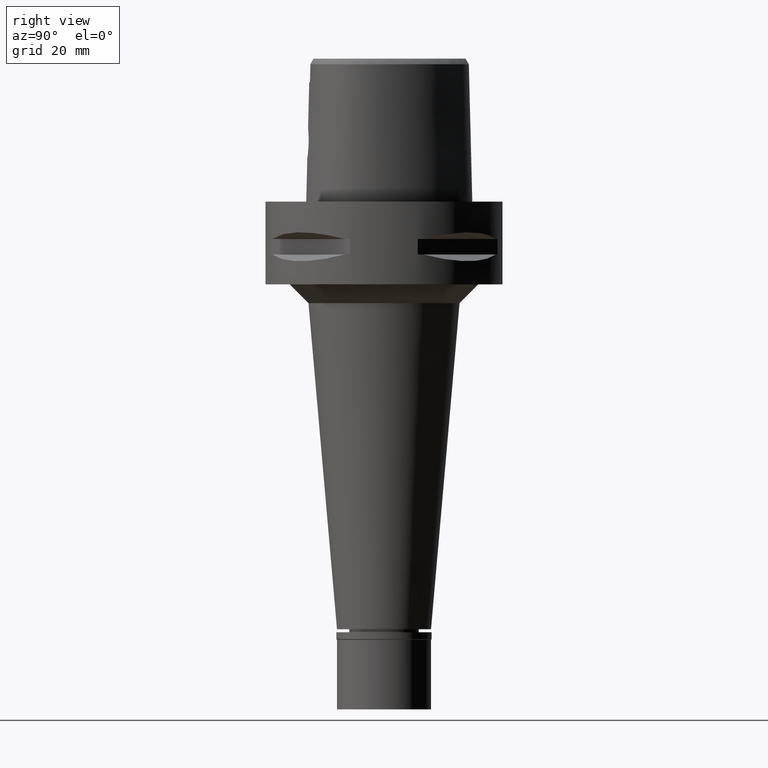
[diagram: clean part render]
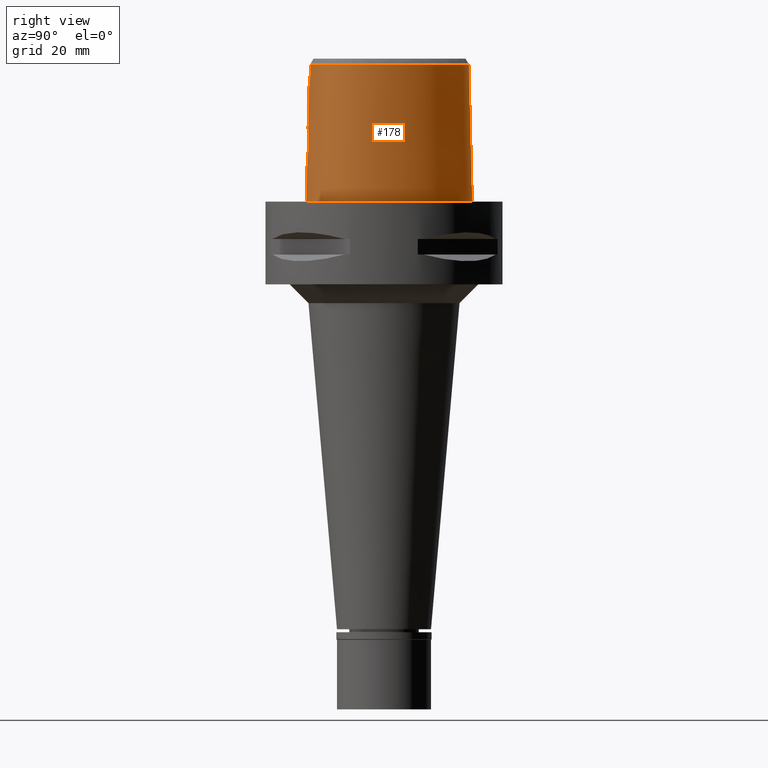
[diagram: same view with one face highlighted and labeled with its STEP entity id]
A machine part, right view. The second image highlights one B-rep face of the part: STEP entity #178.
In plain terms, the highlighted face is a freeform B-spline surface patch.
Its self-contained STEP definition (entity closure, byte-faithful):
#35 = B_SPLINE_SURFACE_WITH_KNOTS ( 'NONE', 3, 3, ( 
 ( #4670, #3059, #4240, #2291 ),
 ( #740, #1642, #3849, #342 ),
 ( #1903, #1524, #4644, #1147 ),
 ( #4505, #3662, #1316, #2147 ),
 ( #3684, #961, #2512, #1716 ),
 ( #3734, #3335, #932, #594 ),
 ( #3708, #179, #208, #155 ),
 ( #4455, #4840, #2123, #2487 ),
 ( #128, #3258, #1415, #235 ),
 ( #4898, #2074, #4042, #1338 ),
 ( #1797, #1391, #2947, #2896 ),
 ( #543, #4095, #3361, #1692 ),
 ( #4868, #1769, #1010, #4071 ),
 ( #3280, #2097, #1739, #4921 ),
 ( #570, #4532, #2563, #3309 ),
 ( #2972, #1364, #2922, #4120 ),
 ( #619, #2174, #4480, #988 ),
 ( #2539, #2462, #4816, #4013 ),
 ( #517, #3637, #2873, #4430 ),
 ( #2204, #648, #3764, #2591 ),
 ( #4148, #1036, #956, #2843 ),
 ( #982, #4089, #1687, #3275 ),
 ( #3301, #1712, #927, #2118 ),
 ( #2915, #4891, #565, #96 ),
 ( #2507, #4009, #2141, #4399 ) ),
 .UNSPECIFIED., .F., .F., .F.,
 ( 4, 1, 1, 1, 1, 1, 1, 1, 1, 1, 1, 1, 1, 1, 1, 1, 1, 1, 1, 1, 1, 1, 4 ),
 ( 4, 4 ),
 ( -0.008985960173574000093, 0.0000000000000000000, 0.08333333333339000559, 0.1666666666667000196, 0.2083333333333000081, 0.2500000000000000000, 0.2916666666666999919, 0.3125000000000000000, 0.3333333333333000081, 0.3541666666666000163, 0.3749999999998999689, 0.4166666666666000163, 0.4583333333332000326, 0.4999999999998999689, 0.5833333333331000015, 0.6666666666664999852, 0.7499999999998000488, 0.8333333333329999704, 0.8749999999997000177, 0.9166666666664000651, 0.9583333333329999704, 1.000000000000000000, 1.011710456763000199 ),
 ( -4.229613537881999790E-09, 1.000000215710000084 ),
 .UNSPECIFIED. ) ;
#96 = CARTESIAN_POINT ( 'NONE',  ( -0.4431573289206999777, 22.53713844973000135, 37.25233218315000272 ) ) ;
#107 = CARTESIAN_POINT ( 'NONE',  ( 6.840896819958283341E-09, -20.08420636276030180, 23.63333344114104762 ) ) ;
#112 = CARTESIAN_POINT ( 'NONE',  ( -7.554098342022001066E-12, -20.67499999999999716, 5.806466418789999109E-14 ) ) ;
#118 = EDGE_CURVE ( 'NONE', #1514, #839, #1840, .T. ) ;
#128 = CARTESIAN_POINT ( 'NONE',  ( 19.66427015043999660, -12.83600704977999918, -0.7304378859442000049 ) ) ;
#140 = CARTESIAN_POINT ( 'NONE',  ( 22.05732879210958686, -6.847636725776191646, -1.967315058472654532E-06 ) ) ;
#155 = CARTESIAN_POINT ( 'NONE',  ( 16.38077671928999735, -14.94316434126000104, 37.25233218315000272 ) ) ;
#177 = B_SPLINE_CURVE_WITH_KNOTS ( 'NONE', 3,
 ( #3403, #1080, #617, #2275 ),
 .UNSPECIFIED., .F., .F.,
 ( 4, 4 ),
 ( 0.0000000000000000000, 1.000000000000000000 ),
 .UNSPECIFIED. ) ;
#178 = ADVANCED_FACE ( 'NONE', ( #4616 ), #35, .T. ) ;
#179 = CARTESIAN_POINT ( 'NONE',  ( 16.77374378262999954, -15.44292467057000096, 11.93048547042000074 ) ) ;
#194 = CARTESIAN_POINT ( 'NONE',  ( 3.686910441657936133, -20.13511169296126013, 13.82359477180941276 ) ) ;
#208 = CARTESIAN_POINT ( 'NONE',  ( 16.57726025095999844, -15.19304450592000144, 24.59140882679000129 ) ) ;
#222 = CARTESIAN_POINT ( 'NONE',  ( -9.433993878921999819E-13, -20.38876923348000147, 11.44999999999999929 ) ) ;
#235 = CARTESIAN_POINT ( 'NONE',  ( 18.89485257640999905, -12.27684358666000008, 37.25233218315000272 ) ) ;
#240 = CARTESIAN_POINT ( 'NONE',  ( 18.90964962507990776, -12.28759713487280969, 36.52186680739953317 ) ) ;
#241 = CARTESIAN_POINT ( 'NONE',  ( 3.671249151389730514, -19.60525176641679579, 34.94790639287000289 ) ) ;
#251 = CARTESIAN_POINT ( 'NONE',  ( 3.727121516744355656, -20.12854809717472904, 13.91496385434327010 ) ) ;
#266 = CARTESIAN_POINT ( 'NONE',  ( 17.90324024158027783, -13.53935104436230041, 36.52186680739953317 ) ) ;
#273 = CARTESIAN_POINT ( 'NONE',  ( 3.850246712570787100, -20.10780614032470837, 14.21172176769479734 ) ) ;
#274 = VERTEX_POINT ( 'NONE', #2891 ) ;
#295 = CARTESIAN_POINT ( 'NONE',  ( 2.282207029747092886, -20.29700151028867694, 12.15162930637129612 ) ) ;
#301 = ORIENTED_EDGE ( 'NONE', *, *, #4596, .T. ) ;
#320 = CARTESIAN_POINT ( 'NONE',  ( 3.128678969662491482, -20.08334280844267639, 18.07279819847166280 ) ) ;
#328 = ORIENTED_EDGE ( 'NONE', *, *, #3098, .T. ) ;
#334 = CARTESIAN_POINT ( 'NONE',  ( 19.88562079788454540, 4.345879946637103863, 36.52186680739953317 ) ) ;
#342 = CARTESIAN_POINT ( 'NONE',  ( -0.4439347080109999899, -19.74161806102000227, 37.25233218315000272 ) ) ;
#361 = B_SPLINE_CURVE_WITH_KNOTS ( 'NONE', 3,
 ( #112, #4051, #1347, #1678, #4849, #4103, #893, #3719, #2107, #4463, #1651, #140, #3240, #4022, #4827, #1703, #2832, #4388, #2523, #4000, #1324, #505, #2059 ),
 .UNSPECIFIED., .F., .F.,
 ( 4, 1, 1, 1, 1, 1, 1, 1, 1, 1, 1, 1, 1, 1, 1, 1, 1, 1, 1, 1, 4 ),
 ( 0.0000000000000000000, 0.08333333333339000559, 0.1666666666667000196, 0.2083333333333000081, 0.2500000000000000000, 0.2916666666666999919, 0.3125000000000000000, 0.3333333333333000081, 0.3541666666666000163, 0.3749999999998999689, 0.4166666666666000163, 0.4583333333332000326, 0.4999999999998999689, 0.5833333333331000015, 0.6666666666664999852, 0.7499999999998000488, 0.8333333333329999704, 0.8749999999997000177, 0.9166666666664000651, 0.9583333333329999704, 1.000000000000000000 ),
 .UNSPECIFIED. ) ;
#369 = CARTESIAN_POINT ( 'NONE',  ( 3.559803832330558304, -20.05788146350366574, 17.44950363746816180 ) ) ;
#413 = EDGE_LOOP ( 'NONE', ( #3144, #301, #3031, #3949, #1440, #3548, #328, #2136 ) ) ;
#417 = VERTEX_POINT ( 'NONE', #2092 ) ;
#462 = VECTOR ( 'NONE', #762, 1000.000000000000114 ) ;
#505 = CARTESIAN_POINT ( 'NONE',  ( 0.8548392457934463895, 23.47500004918023464, -1.967315058472654532E-06 ) ) ;
#517 = CARTESIAN_POINT ( 'NONE',  ( 10.75753574149000080, 19.18839676149000084, -0.7304378859442000049 ) ) ;
#543 = CARTESIAN_POINT ( 'NONE',  ( 21.57281239758999902, -9.001246196660998677, -0.7304378859442000049 ) ) ;
#565 = CARTESIAN_POINT ( 'NONE',  ( -0.4558512611530000092, 22.85344955583000015, 24.59140882679000129 ) ) ;
#570 = CARTESIAN_POINT ( 'NONE',  ( 21.99640702106000134, -0.2778990153236999827, -0.7304378859442000049 ) ) ;
#573 = B_SPLINE_CURVE_WITH_KNOTS ( 'NONE', 3,
 ( #4844, #4076, #107, #2877 ),
 .UNSPECIFIED., .F., .F.,
 ( 4, 4 ),
 ( 0.0000000000000000000, 1.000000000000000000 ),
 .UNSPECIFIED. ) ;
#594 = CARTESIAN_POINT ( 'NONE',  ( 14.21104783672999972, -16.40237677559000318, 37.25233218315000272 ) ) ;
#608 = CARTESIAN_POINT ( 'NONE',  ( 4.048221369819505533, -20.05572751809215148, 15.37605551826763239 ) ) ;
#617 = CARTESIAN_POINT ( 'NONE',  ( 1.251533272182317358, -19.88005341395236414, 31.80000012137771392 ) ) ;
#619 = CARTESIAN_POINT ( 'NONE',  ( 18.08416038766999989, 10.44089487472999878, -0.7304378859442000049 ) ) ;
#635 = CARTESIAN_POINT ( 'NONE',  ( 1.527965580144895252, -20.34815231994709350, 11.74928068373195345 ) ) ;
#648 = CARTESIAN_POINT ( 'NONE',  ( 7.420053096840999451, 21.05635738295000436, 11.93048547042000074 ) ) ;
#663 = CARTESIAN_POINT ( 'NONE',  ( 2.396851615580802175, -20.28741283536880502, 12.23208293719615547 ) ) ;
#685 = CARTESIAN_POINT ( 'NONE',  ( 0.5100579658811899009, -20.38531276215466903, 11.47358267918783881 ) ) ;
#711 = CARTESIAN_POINT ( 'NONE',  ( 3.289399613304852643, -20.19244639184435641, 13.13636645579001083 ) ) ;
#740 = CARTESIAN_POINT ( 'NONE',  ( -0.4561077450351999629, -20.69106756136000058, -0.7304378859442000049 ) ) ;
#761 = CARTESIAN_POINT ( 'NONE',  ( 2.144427845716718739, -20.13626349860817299, 18.93810770242221153 ) ) ;
#762 = DIRECTION ( 'NONE',  ( -5.771733061930829093E-13, -0.02499051295389925070, -0.9996876883618708298 ) ) ;
#775 = VECTOR ( 'NONE', #2360, 999.9999999999998863 ) ;
#794 = CARTESIAN_POINT ( 'NONE',  ( 3.637738219117000238, -19.56971420299000286, 36.52185956443999970 ) ) ;
#839 = VERTEX_POINT ( 'NONE', #2009 ) ;
#853 = CARTESIAN_POINT ( 'NONE',  ( 3.765593220699258392, -20.04704214534180906, 16.99108095766955984 ) ) ;
#881 = CARTESIAN_POINT ( 'NONE',  ( 3.755991642141464304, -20.04748304465435993, 17.01495889863737432 ) ) ;
#893 = CARTESIAN_POINT ( 'NONE',  ( 18.56841068725039179, -14.16937991674452668, -1.967315058472654532E-06 ) ) ;
#917 = EDGE_CURVE ( 'NONE', #3926, #274, #361, .T. ) ;
#927 = CARTESIAN_POINT ( 'NONE',  ( 0.5826623201959000298, 22.88447422782000018, 24.59140882679000129 ) ) ;
#932 = CARTESIAN_POINT ( 'NONE',  ( 14.36818021574000070, -16.67825709531999934, 24.59140882679000129 ) ) ;
#956 = CARTESIAN_POINT ( 'NONE',  ( 4.868968358825999765, 21.95285521918000171, 24.59140882679000129 ) ) ;
#961 = CARTESIAN_POINT ( 'NONE',  ( 11.13012652923000090, -18.61140108800999826, 11.93048547042000074 ) ) ;
#982 = CARTESIAN_POINT ( 'NONE',  ( 2.568271206838999898, 23.31126238898000125, -0.7304378859442000049 ) ) ;
#988 = CARTESIAN_POINT ( 'NONE',  ( 17.25769826293999643, 9.963736389074998812, 37.25233218315000272 ) ) ;
#1010 = CARTESIAN_POINT ( 'NONE',  ( 21.44619279149999969, -6.759806530516999423, 24.59140882679000129 ) ) ;
#1025 = CARTESIAN_POINT ( 'NONE',  ( 1.488028627206210652, -20.35026873354180665, 11.73319909950379092 ) ) ;
#1036 = CARTESIAN_POINT ( 'NONE',  ( 4.987110638427999731, 22.24795273319000088, 11.93048547042000074 ) ) ;
#1040 = CARTESIAN_POINT ( 'NONE',  ( 19.55745538001274397, -11.29150212657956409, 36.52186680739953317 ) ) ;
#1048 = CARTESIAN_POINT ( 'NONE',  ( 1.432005274344609003, -20.35315137661976692, 11.71134280122727311 ) ) ;
#1065 = CARTESIAN_POINT ( 'NONE',  ( 20.09619608769017418, -10.23243839429800417, 36.52186680739953317 ) ) ;
#1073 = CARTESIAN_POINT ( 'NONE',  ( 2.830175095662165408, -20.24590160278924600, 12.60298252333854663 ) ) ;
#1080 = CARTESIAN_POINT ( 'NONE',  ( 2.503154195451734232, -19.81241979350836857, 31.80000012137771392 ) ) ;
#1093 = CARTESIAN_POINT ( 'NONE',  ( 3.644654988697317854, -20.14185568960485995, 13.73169098995836279 ) ) ;
#1119 = CARTESIAN_POINT ( 'NONE',  ( 3.080229322184548035, -20.08617626112495103, 18.13071590546288192 ) ) ;
#1147 = CARTESIAN_POINT ( 'NONE',  ( 1.836480366458999924, -19.76356489852000209, 37.25233218315000272 ) ) ;
#1238 = CARTESIAN_POINT ( 'NONE',  ( 2.467729343594165847, -20.12009802658482016, 18.71204267792763787 ) ) ;
#1264 = CARTESIAN_POINT ( 'NONE',  ( 1.675120599128862686, -20.15532933629845758, 19.18749499249262769 ) ) ;
#1316 = CARTESIAN_POINT ( 'NONE',  ( 6.232237553023000309, -19.68961162269999932, 24.59140882679000129 ) ) ;
#1324 = CARTESIAN_POINT ( 'NONE',  ( 2.564517737066076108, 23.29328129842424389, -1.967315058472654532E-06 ) ) ;
#1338 = CARTESIAN_POINT ( 'NONE',  ( 19.54161151971999999, -11.28235466954000188, 37.25233218315000272 ) ) ;
#1347 = CARTESIAN_POINT ( 'NONE',  ( 6.341471027950916550, -20.29812504868961298, -1.967315058472654532E-06 ) ) ;
#1364 = CARTESIAN_POINT ( 'NONE',  ( 20.46725037016999948, 4.555493622690000244, 11.93048547042000074 ) ) ;
#1379 = CARTESIAN_POINT ( 'NONE',  ( 4.020738798819311732, -20.06858537622277439, 14.99755720161237527 ) ) ;
#1391 = CARTESIAN_POINT ( 'NONE',  ( 20.65879041476000211, -10.48283616424000009, 11.93048547042000074 ) ) ;
#1405 = CARTESIAN_POINT ( 'NONE',  ( 3.169150985202967341, -20.20760989054315360, 12.97742286930335531 ) ) ;
#1415 = CARTESIAN_POINT ( 'NONE',  ( 19.15132510109000208, -12.46323140770000037, 24.59140882679000129 ) ) ;
#1428 = CARTESIAN_POINT ( 'NONE',  ( 1.028701314431084368, -20.37062275902201236, 11.58049741886275541 ) ) ;
#1440 = ORIENTED_EDGE ( 'NONE', *, *, #4376, .T. ) ;
#1476 = CARTESIAN_POINT ( 'NONE',  ( 3.504989208434506676, -20.16277707621800275, 13.46647361527119813 ) ) ;
#1490 = CARTESIAN_POINT ( 'NONE',  ( 4.757642236484611153, 21.67478320247277068, 36.52186680739953317 ) ) ;
#1514 = VERTEX_POINT ( 'NONE', #2440 ) ;
#1516 = CARTESIAN_POINT ( 'NONE',  ( 7.108589361577851484, 20.52412316394557124, 36.52186680739953317 ) ) ;
#1524 = CARTESIAN_POINT ( 'NONE',  ( 1.870063857849999955, -20.39691443321000008, 11.93048547042000074 ) ) ;
#1550 = CARTESIAN_POINT ( 'NONE',  ( 2.673904828756407337, -20.10928166633797076, 18.54472627324917156 ) ) ;
#1609 = B_SPLINE_CURVE_WITH_KNOTS ( 'NONE', 3,
 ( #4824, #3742, #241, #2928 ),
 .UNSPECIFIED., .F., .F.,
 ( 4, 4 ),
 ( 0.0000000000000000000, 1.000000000000000000 ),
 .UNSPECIFIED. ) ;
#1642 = CARTESIAN_POINT ( 'NONE',  ( -0.4520500660271999926, -20.37458439457999759, 11.93048547042000074 ) ) ;
#1651 = CARTESIAN_POINT ( 'NONE',  ( 21.55524830740074904, -8.996025404686079696, -1.967315058472654532E-06 ) ) ;
#1666 = CARTESIAN_POINT ( 'NONE',  ( 3.828814954409509586, -20.04436409866676527, 16.82317999465562863 ) ) ;
#1678 = CARTESIAN_POINT ( 'NONE',  ( 11.23259758417400356, -18.89324223397527547, -1.967315058472654532E-06 ) ) ;
#1687 = CARTESIAN_POINT ( 'NONE',  ( 2.438150570918999893, 22.68791623749000053, 24.59140882679000129 ) ) ;
#1692 = CARTESIAN_POINT ( 'NONE',  ( 20.65947724782000350, -8.729764282773999184, 37.25233218315000272 ) ) ;
#1703 = CARTESIAN_POINT ( 'NONE',  ( 18.06826692807789669, 10.43171877472035192, -1.967315058472654532E-06 ) ) ;
#1712 = CARTESIAN_POINT ( 'NONE',  ( 0.5990981972522000376, 23.20165460525999990, 11.93048547042000074 ) ) ;
#1716 = CARTESIAN_POINT ( 'NONE',  ( 10.91263697908000019, -18.01320773401000253, 37.25233218315000272 ) ) ;
#1739 = CARTESIAN_POINT ( 'NONE',  ( 21.62788384756000326, -4.104079499373999518, 24.59140882679000129 ) ) ;
#1757 = CARTESIAN_POINT ( 'NONE',  ( 3.210108431848968102, -20.20255916619498038, 13.02975361490054063 ) ) ;
#1769 = CARTESIAN_POINT ( 'NONE',  ( 21.76083704387000139, -6.805026033369999894, 11.93048547042000074 ) ) ;
#1784 = CARTESIAN_POINT ( 'NONE',  ( 2.808608589973694336, -20.24816661311869481, 12.58196638594458072 ) ) ;
#1797 = CARTESIAN_POINT ( 'NONE',  ( 20.94844326339000062, -10.61175397208999982, -0.7304378859442000049 ) ) ;
#1809 = CARTESIAN_POINT ( 'NONE',  ( 3.328551379740412930, -20.18727222456296744, 13.19186960083967186 ) ) ;
#1831 = CARTESIAN_POINT ( 'NONE',  ( 4.002664568992802430, -20.07397280446608789, 14.86850854358316631 ) ) ;
#1837 = VERTEX_POINT ( 'NONE', #2783 ) ;
#1840 = B_SPLINE_CURVE_WITH_KNOTS ( 'NONE', 3,
 ( #222, #4134, #685, #4593, #1428, #4518, #2241, #1048, #1025, #2552, #635, #2655, #2190, #4108, #295, #663, #3323, #3753, #4215, #4982, #1784, #1073, #3396, #3351, #2264, #3418, #1405, #1757, #711, #1809, #2216, #1476, #3776, #1093, #194, #4883, #251, #273, #4933, #1831, #1379, #2938, #4494, #608, #2163, #2710, #4762, #3827, #3489, #4352, #4264, #1666, #3612, #853, #881, #5032, #2681, #3588, #369, #5059, #2315, #320, #1119, #3962, #3874, #4378, #2025, #1929, #3084, #2796, #1550, #4406, #1238, #2050, #2411, #761, #2823, #1881, #2850, #1264, #2436, #3231, #3467, #3990, #3443 ),
 .UNSPECIFIED., .F., .F.,
 ( 4, 2, 2, 1, 1, 1, 2, 2, 2, 2, 2, 1, 1, 2, 2, 2, 2, 2, 2, 1, 2, 2, 2, 2, 1, 2, 2, 2, 2, 1, 1, 1, 2, 2, 2, 2, 2, 1, 1, 2, 2, 2, 2, 2, 2, 1, 2, 2, 4 ),
 ( 0.0000000000000000000, 0.06250000000000036082, 0.09375000000000059674, 0.1093750000000007216, 0.1171875000000007216, 0.1210937500000006800, 0.1230468750000005967, 0.1250000000000004996, 0.1874999999999977796, 0.2187499999999965028, 0.2343749999999958644, 0.2421874999999956701, 0.2460937499999956146, 0.2480468749999956424, 0.2499999999999956424, 0.2812500000000002776, 0.2968750000000027756, 0.3125000000000052736, 0.3437500000000101585, 0.3593750000000124345, 0.3671875000000135447, 0.3750000000000146549, 0.4375000000000242584, 0.4687500000000290323, 0.4843750000000315858, 0.4921875000000329181, 0.5000000000000341949, 0.5625000000000416334, 0.5937500000000454081, 0.6093750000000477396, 0.6171875000000488498, 0.6210937500000494049, 0.6230468750000492939, 0.6250000000000492939, 0.6875000000000419664, 0.7187500000000378586, 0.7343750000000356382, 0.7421875000000348610, 0.7460937500000344169, 0.7480468750000344169, 0.7500000000000344169, 0.7812500000000295319, 0.7968750000000273115, 0.8125000000000252021, 0.8437500000000208722, 0.8593750000000188738, 0.8671875000000178746, 0.8750000000000169864, 1.000000000000000000 ),
 .UNSPECIFIED. ) ;
#1873 = CARTESIAN_POINT ( 'NONE',  ( -1.721532156196000281E-11, 22.56201468012000078, 36.52186680743999858 ) ) ;
#1881 = CARTESIAN_POINT ( 'NONE',  ( 1.856701250911930279, -20.14848423775700681, 19.09993988372597684 ) ) ;
#1903 = CARTESIAN_POINT ( 'NONE',  ( 1.886855603546000015, -20.71358920055000041, -0.7304378859442000049 ) ) ;
#1929 = CARTESIAN_POINT ( 'NONE',  ( 2.880386059683543110, -20.09771851976560342, 18.34709984349684220 ) ) ;
#1952 = CARTESIAN_POINT ( 'NONE',  ( -1.721532156196000281E-11, 22.56201468012000078, 36.52186680743999858 ) ) ;
#2009 = CARTESIAN_POINT ( 'NONE',  ( 0.0000000000000000000, -20.18628283968999781, 19.55000000000000071 ) ) ;
#2025 = CARTESIAN_POINT ( 'NONE',  ( 2.894506219204310948, -20.09690955887031549, 18.33274339089276594 ) ) ;
#2035 = EDGE_CURVE ( 'NONE', #2281, #417, #177, .T. ) ;
#2050 = CARTESIAN_POINT ( 'NONE',  ( 2.361140904826402043, -20.12552479265203331, 18.79118822093476027 ) ) ;
#2059 = CARTESIAN_POINT ( 'NONE',  ( 4.563157032635000015E-11, 23.47499999999000053, 5.514107688971999147E-14 ) ) ;
#2074 = CARTESIAN_POINT ( 'NONE',  ( 20.09084467298000121, -11.59945457961999971, 11.93048547042000074 ) ) ;
#2092 = CARTESIAN_POINT ( 'NONE',  ( 2.041042029990999821E-08, -19.88004246002000031, 31.80000004972000127 ) ) ;
#2097 = CARTESIAN_POINT ( 'NONE',  ( 21.94536970905999951, -4.102220499696000111, 11.93048547042000074 ) ) ;
#2107 = CARTESIAN_POINT ( 'NONE',  ( 20.34961802823546151, -11.74885744650548247, -1.967315058472654532E-06 ) ) ;
#2118 = CARTESIAN_POINT ( 'NONE',  ( 0.5662264431394999908, 22.56729385036999957, 37.25233218315000272 ) ) ;
#2123 = CARTESIAN_POINT ( 'NONE',  ( 18.12052890500999780, -13.74516014561000077, 24.59140882679000129 ) ) ;
#2136 = ORIENTED_EDGE ( 'NONE', *, *, #917, .T. ) ;
#2141 = CARTESIAN_POINT ( 'NONE',  ( -0.6834383974454999455, 22.83968675902000101, 24.59140882679000129 ) ) ;
#2147 = CARTESIAN_POINT ( 'NONE',  ( 6.175998540726999941, -19.37631760665999892, 37.25233218315000272 ) ) ;
#2163 = CARTESIAN_POINT ( 'NONE',  ( 4.049643110176806005, -20.05399160878187814, 15.43795828973407325 ) ) ;
#2174 = CARTESIAN_POINT ( 'NONE',  ( 17.80867301276000347, 10.28184204617999775, 11.93048547042000074 ) ) ;
#2190 = CARTESIAN_POINT ( 'NONE',  ( 1.734379789056268439, -20.33697246834248062, 11.83436638252621975 ) ) ;
#2204 = CARTESIAN_POINT ( 'NONE',  ( 7.580410842770000990, 21.33037926737000234, -0.7304378859442000049 ) ) ;
#2209 = CARTESIAN_POINT ( 'NONE',  ( 17.27359236348576133, 9.972912859139968944, 36.52186680739953317 ) ) ;
#2216 = CARTESIAN_POINT ( 'NONE',  ( 3.437023659522733698, -20.17240543791111307, 13.35378256640194650 ) ) ;
#2232 = CARTESIAN_POINT ( 'NONE',  ( 10.15538781006415547, 18.47129526702769553, 36.52186680739953317 ) ) ;
#2241 = CARTESIAN_POINT ( 'NONE',  ( 1.319600680390656811, -20.35863312411228421, 11.66994494017201411 ) ) ;
#2264 = CARTESIAN_POINT ( 'NONE',  ( 2.953000302320876624, -20.23281254683992003, 12.72512295699170082 ) ) ;
#2275 = CARTESIAN_POINT ( 'NONE',  ( 2.041042029990999821E-08, -19.88004246002000031, 31.80000004972000127 ) ) ;
#2281 = VERTEX_POINT ( 'NONE', #3658 ) ;
#2284 = CARTESIAN_POINT ( 'NONE',  ( 14.22011350745917824, -16.41829354688240628, 36.52186680739953317 ) ) ;
#2291 = CARTESIAN_POINT ( 'NONE',  ( -0.6657939490012000361, -19.73734193509999812, 37.25233218315000272 ) ) ;
#2315 = CARTESIAN_POINT ( 'NONE',  ( 3.265869583393927300, -20.07528142228554913, 17.89964299955888904 ) ) ;
#2360 = DIRECTION ( 'NONE',  ( 1.720264311894959436E-12, 0.02499051290962944413, -0.9996876883629776112 ) ) ;
#2411 = CARTESIAN_POINT ( 'NONE',  ( 2.305334229535943802, -20.12831948498825341, 18.83048013503533014 ) ) ;
#2436 = CARTESIAN_POINT ( 'NONE',  ( 1.613182323484495306, -20.15753140428485324, 19.21500890072704948 ) ) ;
#2440 = CARTESIAN_POINT ( 'NONE',  ( -9.433993878921999819E-13, -20.38876923348000147, 11.44999999999999929 ) ) ;
#2462 = CARTESIAN_POINT ( 'NONE',  ( 14.17879752764999957, 15.44741190408999820, 11.93048547042000074 ) ) ;
#2487 = CARTESIAN_POINT ( 'NONE',  ( 17.88993632270000234, -13.52674998388999938, 37.25233218315000272 ) ) ;
#2507 = CARTESIAN_POINT ( 'NONE',  ( -0.7217521650829999968, 23.47150799211000205, -0.7304378859442000049 ) ) ;
#2512 = CARTESIAN_POINT ( 'NONE',  ( 11.02138175414999921, -18.31230441101000039, 24.59140882679000129 ) ) ;
#2523 = CARTESIAN_POINT ( 'NONE',  ( 7.571159459268176128, 21.31457035507845177, -1.967315058472654532E-06 ) ) ;
#2539 = CARTESIAN_POINT ( 'NONE',  ( 14.42198652398999847, 15.65278600587999946, -0.7304378859442000049 ) ) ;
#2552 = CARTESIAN_POINT ( 'NONE',  ( 1.511996643077990310, -20.34900293593731746, 11.74281483622983657 ) ) ;
#2563 = CARTESIAN_POINT ( 'NONE',  ( 21.36961485714000020, -0.3886498174368000491, 24.59140882679000129 ) ) ;
#2591 = CARTESIAN_POINT ( 'NONE',  ( 7.099337604985000105, 20.50831361410999776, 37.25233218315000272 ) ) ;
#2595 = CARTESIAN_POINT ( 'NONE',  ( 7.300578979383688605, -19.07170738131136289, 36.52186680739953317 ) ) ;
#2647 = CARTESIAN_POINT ( 'NONE',  ( 13.70645019738461734, 15.04851265230682955, 36.52186680739953317 ) ) ;
#2655 = CARTESIAN_POINT ( 'NONE',  ( 1.537967824490865887, -20.34761404973959031, 11.75337532982797484 ) ) ;
#2678 = VERTEX_POINT ( 'NONE', #794 ) ;
#2681 = CARTESIAN_POINT ( 'NONE',  ( 3.745459306423714274, -20.04797394566475788, 17.04080371185160914 ) ) ;
#2710 = CARTESIAN_POINT ( 'NONE',  ( 4.049995275655164484, -20.05320010482691373, 15.46762644421683852 ) ) ;
#2783 = CARTESIAN_POINT ( 'NONE',  ( -1.721532156196000281E-11, 22.56201468012000078, 36.52186680743999858 ) ) ;
#2796 = CARTESIAN_POINT ( 'NONE',  ( 2.772326413959757208, -20.10389738242800917, 18.45539022241212379 ) ) ;
#2823 = CARTESIAN_POINT ( 'NONE',  ( 2.032175996680010588, -20.14130468680036046, 19.00576489868234731 ) ) ;
#2832 = CARTESIAN_POINT ( 'NONE',  ( 14.40795642737363735, 15.64093753191951208, -1.967315058472654532E-06 ) ) ;
#2843 = CARTESIAN_POINT ( 'NONE',  ( 4.750826079224000686, 21.65775770516999899, 37.25233218315000272 ) ) ;
#2850 = CARTESIAN_POINT ( 'NONE',  ( 1.767192251264180891, -20.15197845540239996, 19.14519926631463775 ) ) ;
#2873 = CARTESIAN_POINT ( 'NONE',  ( 10.34823227038000049, 18.70095486306999888, 24.59140882679000129 ) ) ;
#2877 = CARTESIAN_POINT ( 'NONE',  ( 0.0000000000000000000, -20.18628283968999781, 19.55000000000000071 ) ) ;
#2891 = CARTESIAN_POINT ( 'NONE',  ( 4.563157032635000015E-11, 23.47499999999000053, 5.514107688971999147E-14 ) ) ;
#2896 = CARTESIAN_POINT ( 'NONE',  ( 20.07948471751999975, -10.22500054854999796, 37.25233218315000272 ) ) ;
#2915 = CARTESIAN_POINT ( 'NONE',  ( -0.4812391256175999610, 23.48607176802000041, -0.7304378859442000049 ) ) ;
#2922 = CARTESIAN_POINT ( 'NONE',  ( 20.16779718632999874, 4.447573589626999890, 24.59140882679000129 ) ) ;
#2928 = CARTESIAN_POINT ( 'NONE',  ( 3.637738219117000238, -19.56971420299000286, 36.52185956443999970 ) ) ;
#2938 = CARTESIAN_POINT ( 'NONE',  ( 4.038482248007211339, -20.06165359963147665, 15.18817722016143179 ) ) ;
#2947 = CARTESIAN_POINT ( 'NONE',  ( 20.36913756614000093, -10.35391835639999947, 24.59140882679000129 ) ) ;
#2972 = CARTESIAN_POINT ( 'NONE',  ( 20.76670355402000112, 4.663413655752999709, -0.7304378859442000049 ) ) ;
#3027 = CARTESIAN_POINT ( 'NONE',  ( 21.07429999882571181, -0.4408303635841001045, 36.52186680739953317 ) ) ;
#3031 = ORIENTED_EDGE ( 'NONE', *, *, #5004, .F. ) ;
#3059 = CARTESIAN_POINT ( 'NONE',  ( -0.6779734121474999542, -20.37023475774000048, 11.93048547042000074 ) ) ;
#3084 = CARTESIAN_POINT ( 'NONE',  ( 2.871987183427143542, -20.09819914941971319, 18.35556622516883962 ) ) ;
#3085 = LINE ( 'NONE', #4646, #462 ) ;
#3098 = EDGE_CURVE ( 'NONE', #1514, #3926, #3085, .T. ) ;
#3144 = ORIENTED_EDGE ( 'NONE', *, *, #3498, .F. ) ;
#3231 = CARTESIAN_POINT ( 'NONE',  ( 1.583085234474147729, -20.15857747892414764, 19.22794739783282481 ) ) ;
#3240 = CARTESIAN_POINT ( 'NONE',  ( 22.24453912788286303, -4.100468749710564076, -1.967315058472654532E-06 ) ) ;
#3258 = CARTESIAN_POINT ( 'NONE',  ( 19.40779762576999801, -12.64961922874000066, 11.93048547042000074 ) ) ;
#3275 = CARTESIAN_POINT ( 'NONE',  ( 2.373090252958999891, 22.37624316175000061, 37.25233218315000272 ) ) ;
#3280 = CARTESIAN_POINT ( 'NONE',  ( 22.26285557055999931, -4.100361500018000704, -0.7304378859442000049 ) ) ;
#3301 = CARTESIAN_POINT ( 'NONE',  ( 0.6155340743084999344, 23.51883498271000050, -0.7304378859442000049 ) ) ;
#3309 = CARTESIAN_POINT ( 'NONE',  ( 21.05621877517999962, -0.4440252184933000112, 37.25233218315000272 ) ) ;
#3323 = CARTESIAN_POINT ( 'NONE',  ( 2.570081009084386192, -20.27170108689807293, 12.36908902939368460 ) ) ;
#3335 = CARTESIAN_POINT ( 'NONE',  ( 14.52531259475000169, -16.95413741505999994, 11.93048547042000074 ) ) ;
#3351 = CARTESIAN_POINT ( 'NONE',  ( 2.853007646188750357, -20.24348516854156799, 12.62547111175751979 ) ) ;
#3361 = CARTESIAN_POINT ( 'NONE',  ( 20.96392229774999905, -8.820258254069001325, 24.59140882679000129 ) ) ;
#3388 = CARTESIAN_POINT ( 'NONE',  ( 10.91891095221345864, -18.03046396093762027, 36.52186680739953317 ) ) ;
#3396 = CARTESIAN_POINT ( 'NONE',  ( 2.844541275135316738, -20.24438467540248254, 12.61708719066292339 ) ) ;
#3403 = CARTESIAN_POINT ( 'NONE',  ( 3.736696120837999402, -19.67778323291999953, 31.80000004972999861 ) ) ;
#3410 = CARTESIAN_POINT ( 'NONE',  ( 3.637738219117000238, -19.56971420299000286, 36.52185956443999970 ) ) ;
#3418 = CARTESIAN_POINT ( 'NONE',  ( 3.042491796687598615, -20.22274507510632802, 12.82354767343123747 ) ) ;
#3443 = CARTESIAN_POINT ( 'NONE',  ( 0.0000000000000000000, -20.18628283968999781, 19.55000000000000071 ) ) ;
#3467 = CARTESIAN_POINT ( 'NONE',  ( 1.027682876504142584, -20.17741712424493272, 19.45809765211923548 ) ) ;
#3489 = CARTESIAN_POINT ( 'NONE',  ( 3.950323019400082458, -20.04135421479578838, 16.40274729697709688 ) ) ;
#3498 = EDGE_CURVE ( 'NONE', #1837, #274, #4740, .T. ) ;
#3548 = ORIENTED_EDGE ( 'NONE', *, *, #118, .F. ) ;
#3588 = CARTESIAN_POINT ( 'NONE',  ( 3.664274183421038167, -20.05181531545087736, 17.23726368440960854 ) ) ;
#3612 = CARTESIAN_POINT ( 'NONE',  ( 3.787426346251056231, -20.04607170149531115, 16.93525315950302712 ) ) ;
#3623 = B_SPLINE_CURVE_WITH_KNOTS ( 'NONE', 3,
 ( #1873, #4563, #3741, #1490, #1516, #2232, #2647, #2209, #334, #3027, #3768, #4538, #3793, #1065, #1040, #240, #266, #4154, #2284, #3388, #2595, #4952, #3410 ),
 .UNSPECIFIED., .F., .F.,
 ( 4, 1, 1, 1, 1, 1, 1, 1, 1, 1, 1, 1, 1, 1, 1, 1, 1, 1, 1, 1, 4 ),
 ( 0.0000000000000000000, 0.04382683003322097870, 0.08765366006602108573, 0.1314804900989265390, 0.1753073201318319785, 0.2629609801974323036, 0.3506146402631379888, 0.4382683003289487567, 0.5259219603945491928, 0.5697487904274545212, 0.6135756204602547115, 0.6574024504931601509, 0.6793158655095602461, 0.7012292805259604522, 0.7231426955423604364, 0.7450561105587605315, 0.7888829405916659709, 0.8327097706245714104, 0.8765366006573714897, 0.9641902607230876665, 1.000000000000000000 ),
 .UNSPECIFIED. ) ;
#3637 = CARTESIAN_POINT ( 'NONE',  ( 10.55288400593000020, 18.94467581227999631, 11.93048547042000074 ) ) ;
#3658 = CARTESIAN_POINT ( 'NONE',  ( 3.736696120837999402, -19.67778323291999953, 31.80000004972999861 ) ) ;
#3662 = CARTESIAN_POINT ( 'NONE',  ( 6.288476565318000588, -20.00290563873999972, 11.93048547042000074 ) ) ;
#3684 = CARTESIAN_POINT ( 'NONE',  ( 11.23887130429999992, -18.91049776501999702, -0.7304378859442000049 ) ) ;
#3700 = CARTESIAN_POINT ( 'NONE',  ( -7.554098342022001066E-12, -20.67499999999999716, 5.806466418789999109E-14 ) ) ;
#3708 = CARTESIAN_POINT ( 'NONE',  ( 16.97022731430000064, -15.69280483522000225, -0.7304378859442000049 ) ) ;
#3719 = CARTESIAN_POINT ( 'NONE',  ( 19.64947369848403369, -12.82525393522029233, -1.967315058472654532E-06 ) ) ;
#3734 = CARTESIAN_POINT ( 'NONE',  ( 14.68244497375000002, -17.23001773479000320, -0.7304378859442000049 ) ) ;
#3741 = CARTESIAN_POINT ( 'NONE',  ( 2.376843874102832821, 22.39422497744954654, 36.52186680739953317 ) ) ;
#3742 = CARTESIAN_POINT ( 'NONE',  ( 3.704239288984441103, -19.64128042389065598, 33.37395322129999897 ) ) ;
#3753 = CARTESIAN_POINT ( 'NONE',  ( 2.628027080903733825, -20.26624238139267931, 12.41747670475470855 ) ) ;
#3764 = CARTESIAN_POINT ( 'NONE',  ( 7.259695350912999778, 20.78233549852999928, 24.59140882679000129 ) ) ;
#3768 = CARTESIAN_POINT ( 'NONE',  ( 21.32871516740519269, -4.105831245034256227, 36.52186680739953317 ) ) ;
#3776 = CARTESIAN_POINT ( 'NONE',  ( 3.599362307491986712, -20.14875877779054747, 13.64217581387161182 ) ) ;
#3793 = CARTESIAN_POINT ( 'NONE',  ( 20.67704204633690068, -8.734985285293687340, 36.52186680739953317 ) ) ;
#3827 = CARTESIAN_POINT ( 'NONE',  ( 4.026067555606275938, -20.04243146964168787, 16.01312629722239578 ) ) ;
#3849 = CARTESIAN_POINT ( 'NONE',  ( -0.4479923870190999913, -20.05810122779999816, 24.59140882679000129 ) ) ;
#3874 = CARTESIAN_POINT ( 'NONE',  ( 2.963657114688500016, -20.09293563006355399, 18.26079471621683226 ) ) ;
#3926 = VERTEX_POINT ( 'NONE', #3700 ) ;
#3949 = ORIENTED_EDGE ( 'NONE', *, *, #2035, .T. ) ;
#3962 = CARTESIAN_POINT ( 'NONE',  ( 3.003234361618615011, -20.09064592609322020, 18.21745801850156354 ) ) ;
#3990 = CARTESIAN_POINT ( 'NONE',  ( 0.4948470747598994190, -20.18628283969000492, 19.54999999999999716 ) ) ;
#4000 = CARTESIAN_POINT ( 'NONE',  ( 5.098437035641245174, 22.52602543647616784, -1.967315058472654532E-06 ) ) ;
#4009 = CARTESIAN_POINT ( 'NONE',  ( -0.7025952812642000112, 23.15559737557000375, 11.93048547042000074 ) ) ;
#4013 = CARTESIAN_POINT ( 'NONE',  ( 13.69241953495999908, 15.03666370052000012, 37.25233218315000272 ) ) ;
#4022 = CARTESIAN_POINT ( 'NONE',  ( 21.97832652656698826, -0.2810937413955414410, -1.967315058472654532E-06 ) ) ;
#4042 = CARTESIAN_POINT ( 'NONE',  ( 19.81622809634999882, -11.44090462457999813, 24.59140882679000129 ) ) ;
#4051 = CARTESIAN_POINT ( 'NONE',  ( 2.113823675991321149, -20.67500004917217993, -1.967315058472654532E-06 ) ) ;
#4071 = CARTESIAN_POINT ( 'NONE',  ( 21.13154853911999709, -6.714587027664999930, 37.25233218315000272 ) ) ;
#4076 = CARTESIAN_POINT ( 'NONE',  ( 6.820919413739377610E-09, -19.98212988583174266, 27.71666688228186004 ) ) ;
#4089 = CARTESIAN_POINT ( 'NONE',  ( 2.503210888878999896, 22.99958931324000133, 11.93048547042000074 ) ) ;
#4095 = CARTESIAN_POINT ( 'NONE',  ( 21.26836734767000081, -8.910752225365000001, 11.93048547042000074 ) ) ;
#4103 = CARTESIAN_POINT ( 'NONE',  ( 16.95889175646497904, -15.67838871070238760, -1.967315058472654532E-06 ) ) ;
#4108 = CARTESIAN_POINT ( 'NONE',  ( 1.946611601997928709, -20.32311006286644428, 11.93862046598771265 ) ) ;
#4120 = CARTESIAN_POINT ( 'NONE',  ( 19.86834400247999710, 4.339653556564000425, 37.25233218315000272 ) ) ;
#4134 = CARTESIAN_POINT ( 'NONE',  ( 0.2519697368790916325, -20.38876923348000503, 11.44999999999999751 ) ) ;
#4148 = CARTESIAN_POINT ( 'NONE',  ( 5.105252918030000586, 22.54305024720000361, -0.7304378859442000049 ) ) ;
#4154 = CARTESIAN_POINT ( 'NONE',  ( 16.39211273426697346, -14.95758104715366166, 36.52186680739953317 ) ) ;
#4215 = CARTESIAN_POINT ( 'NONE',  ( 2.714817435291130288, -20.25772213911184849, 12.49437854280306937 ) ) ;
#4240 = CARTESIAN_POINT ( 'NONE',  ( -0.6718836805743999552, -20.05378834641999930, 24.59140882679000129 ) ) ;
#4264 = CARTESIAN_POINT ( 'NONE',  ( 3.860403433736958601, -20.04330035600994009, 16.72651338064794047 ) ) ;
#4352 = CARTESIAN_POINT ( 'NONE',  ( 3.918456791372860515, -20.04170609324360086, 16.53266420031398098 ) ) ;
#4376 = EDGE_CURVE ( 'NONE', #417, #839, #573, .T. ) ;
#4378 = CARTESIAN_POINT ( 'NONE',  ( 2.915545606163441050, -20.09570297646316206, 18.31119129211962360 ) ) ;
#4388 = CARTESIAN_POINT ( 'NONE',  ( 10.74572894239208765, 19.17433597536764367, -1.967315058472654532E-06 ) ) ;
#4399 = CARTESIAN_POINT ( 'NONE',  ( -0.6642815136266999598, 22.52377614246999826, 37.25233218315000272 ) ) ;
#4406 = CARTESIAN_POINT ( 'NONE',  ( 2.520050460812478299, -20.11738995382086514, 18.67115940202065261 ) ) ;
#4430 = CARTESIAN_POINT ( 'NONE',  ( 10.14358053481999988, 18.45723391385999790, 37.25233218315000272 ) ) ;
#4455 = CARTESIAN_POINT ( 'NONE',  ( 18.58171406963000294, -14.18198046905999909, -0.7304378859442000049 ) ) ;
#4463 = CARTESIAN_POINT ( 'NONE',  ( 20.93173256713054542, -10.60431642628437920, -1.967315058472654532E-06 ) ) ;
#4480 = CARTESIAN_POINT ( 'NONE',  ( 17.53318563784999995, 10.12278921763000028, 24.59140882679000129 ) ) ;
#4494 = CARTESIAN_POINT ( 'NONE',  ( 4.045013207771214425, -20.05847505277924725, 15.28275217491512272 ) ) ;
#4505 = CARTESIAN_POINT ( 'NONE',  ( 6.344715577614000068, -20.31619965477999656, -0.7304378859442000049 ) ) ;
#4518 = CARTESIAN_POINT ( 'NONE',  ( 1.222756221967583823, -20.36284569854002768, 11.63840396453707449 ) ) ;
#4532 = CARTESIAN_POINT ( 'NONE',  ( 21.68301093910000077, -0.3332744163802000004, 11.93048547042000074 ) ) ;
#4538 = CARTESIAN_POINT ( 'NONE',  ( 21.14970177530770101, -6.717195943319279827, 36.52186680739953317 ) ) ;
#4563 = CARTESIAN_POINT ( 'NONE',  ( 0.7901461619514099644, 22.56201467849907516, 36.52186680739953317 ) ) ;
#4593 = CARTESIAN_POINT ( 'NONE',  ( 0.8988479711760153368, -20.37494334817867525, 11.54879813003858935 ) ) ;
#4596 = EDGE_CURVE ( 'NONE', #1837, #2678, #3623, .T. ) ;
#4616 = FACE_OUTER_BOUND ( 'NONE', #413, .T. ) ;
#4644 = CARTESIAN_POINT ( 'NONE',  ( 1.853272112154000117, -20.08023966586999620, 24.59140882679000129 ) ) ;
#4646 = CARTESIAN_POINT ( 'NONE',  ( -9.433993878921999819E-13, -20.38876923348000147, 11.44999999999999929 ) ) ;
#4670 = CARTESIAN_POINT ( 'NONE',  ( -0.6840631437206999843, -20.68668116907000254, -0.7304378859442000049 ) ) ;
#4740 = LINE ( 'NONE', #1952, #775 ) ;
#4762 = CARTESIAN_POINT ( 'NONE',  ( 4.050037399383525916, -20.04599349312465861, 15.75361975467016684 ) ) ;
#4816 = CARTESIAN_POINT ( 'NONE',  ( 13.93560853131000243, 15.24203780230000049, 24.59140882679000129 ) ) ;
#4824 = CARTESIAN_POINT ( 'NONE',  ( 3.736696120837999402, -19.67778323291999953, 31.80000004972999861 ) ) ;
#4827 = CARTESIAN_POINT ( 'NONE',  ( 20.74942745532836952, 4.657187516768497737, -1.967315058472654532E-06 ) ) ;
#4840 = CARTESIAN_POINT ( 'NONE',  ( 18.35112148731999682, -13.96357030734000126, 11.93048547042000074 ) ) ;
#4844 = CARTESIAN_POINT ( 'NONE',  ( 2.041042029990999821E-08, -19.88004246002000031, 31.80000004972000127 ) ) ;
#4849 = CARTESIAN_POINT ( 'NONE',  ( 14.67337966860828047, -17.21410160536548517, -1.967315058472654532E-06 ) ) ;
#4868 = CARTESIAN_POINT ( 'NONE',  ( 22.07548129623999955, -6.850245536222000275, -0.7304378859442000049 ) ) ;
#4883 = CARTESIAN_POINT ( 'NONE',  ( 3.714384130523716188, -20.13065104887486712, 13.88538127571099956 ) ) ;
#4891 = CARTESIAN_POINT ( 'NONE',  ( -0.4685451933852999851, 23.16976066192999895, 11.93048547042000074 ) ) ;
#4898 = CARTESIAN_POINT ( 'NONE',  ( 20.36546124960000270, -11.75800453465999951, -0.7304378859442000049 ) ) ;
#4921 = CARTESIAN_POINT ( 'NONE',  ( 21.31039798605999991, -4.105938499051998924, 37.25233218315000272 ) ) ;
#4933 = CARTESIAN_POINT ( 'NONE',  ( 3.927790621348953515, -20.09243382074338413, 14.47756111163828052 ) ) ;
#4952 = CARTESIAN_POINT ( 'NONE',  ( 4.467522181836392825, -19.48130276147540840, 36.52186680739953317 ) ) ;
#4982 = CARTESIAN_POINT ( 'NONE',  ( 2.758179676623911725, -20.25337897196574843, 12.53390918841327206 ) ) ;
#5004 = EDGE_CURVE ( 'NONE', #2281, #2678, #1609, .T. ) ;
#5032 = CARTESIAN_POINT ( 'NONE',  ( 3.749536200692483057, -20.04778253193092752, 17.03086640831055476 ) ) ;
#5059 = CARTESIAN_POINT ( 'NONE',  ( 3.346444325181144208, -20.07049246070038606, 17.78503332968190520 ) ) ;